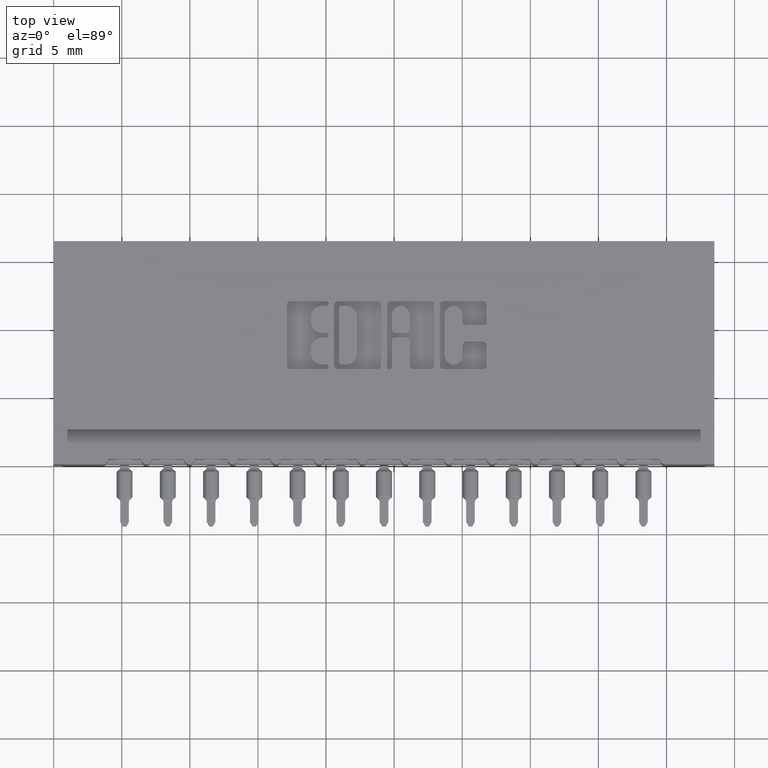
[diagram: clean part render]
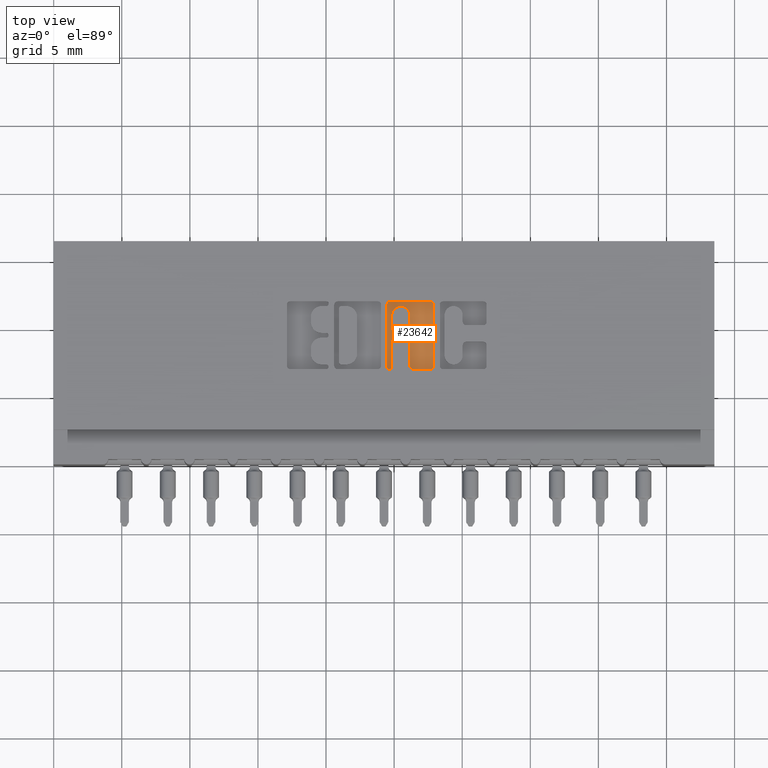
[diagram: same view with one face highlighted and labeled with its STEP entity id]
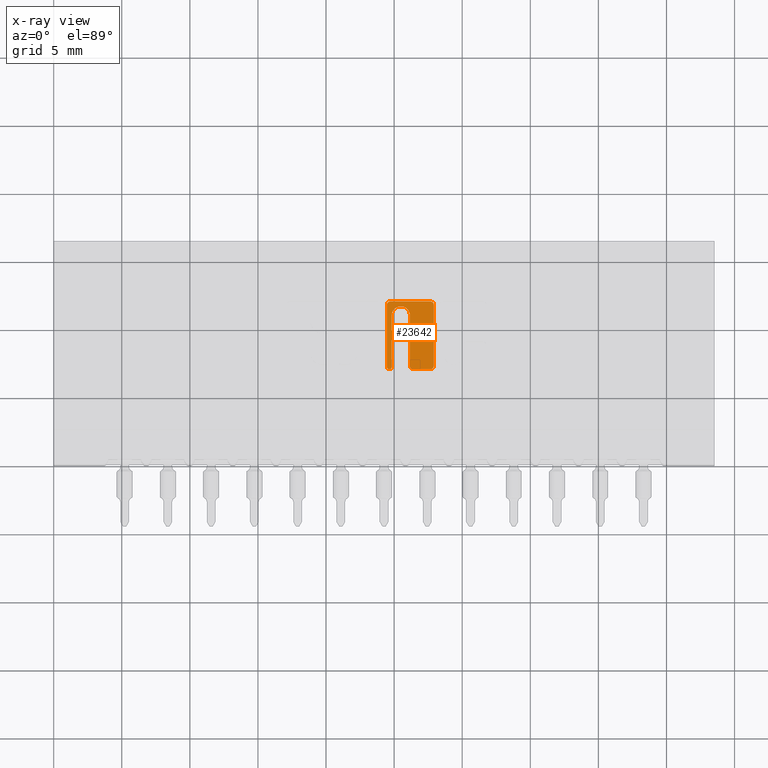
[diagram: x-ray of the same camera — body ghosted, the highlighted face saturated]
A machine part, top view. The second image highlights one B-rep face of the part: STEP entity #23642.
The next image is the same camera in x-ray: the body ghosted, the highlighted face saturated — about 0% of this face is hidden behind the body in this view.
In plain terms, the highlighted planar face has unit normal (0, 0, 1).
Its self-contained STEP definition (entity closure, byte-faithful):
#17 = CARTESIAN_POINT ( 'NONE',  ( -1.290985506876496686E-14, 0.3656290308573138526, -0.01000000000000000021 ) ) ;
#174 = CARTESIAN_POINT ( 'NONE',  ( 1.029844485303984758, 0.3558133606535435201, -0.01000000000000000021 ) ) ;
#223 = AXIS2_PLACEMENT_3D ( 'NONE', #5933, #2314, #20627 ) ;
#443 = DIRECTION ( 'NONE',  ( -0.0000000000000000000, 0.0000000000000000000, 1.000000000000000000 ) ) ;
#669 = CARTESIAN_POINT ( 'NONE',  ( 0.9871463199174501657, 0.3891866393464887830, -0.01000000000000000021 ) ) ;
#715 = CARTESIAN_POINT ( 'NONE',  ( 1.089229290037011522, 0.4608410318342104350, -0.01000000000000000021 ) ) ;
#728 = DIRECTION ( 'NONE',  ( 1.000000000000000000, 0.0000000000000000000, 0.0000000000000000000 ) ) ;
#763 = ORIENTED_EDGE ( 'NONE', *, *, #12446, .F. ) ;
#876 = PLANE ( 'NONE',  #223 ) ;
#997 = DIRECTION ( 'NONE',  ( 1.000000000000000000, 0.0000000000000000000, 0.0000000000000000000 ) ) ;
#1045 = VECTOR ( 'NONE', #23319, 39.37007874015748143 ) ;
#1099 = DIRECTION ( 'NONE',  ( 1.000000000000000000, 0.0000000000000000000, 0.0000000000000000000 ) ) ;
#1282 = CARTESIAN_POINT ( 'NONE',  ( 0.9635887114283309129, 0.0000000000000000000, -0.01000000000000000021 ) ) ;
#1470 = AXIS2_PLACEMENT_3D ( 'NONE', #4168, #443, #11519 ) ;
#1570 = EDGE_LOOP ( 'NONE', ( #9119, #17595, #19619, #4228, #9385, #7135 ) ) ;
#1783 = DIRECTION ( 'NONE',  ( -0.0000000000000000000, 0.0000000000000000000, 1.000000000000000000 ) ) ;
#1811 = LINE ( 'NONE', #17, #10176 ) ;
#1936 = VERTEX_POINT ( 'NONE', #10135 ) ;
#2078 = CARTESIAN_POINT ( 'NONE',  ( 0.9773306497136469151, 0.2812142671046480302, -0.01000000000000000021 ) ) ;
#2191 = EDGE_CURVE ( 'NONE', #21495, #20433, #16770, .T. ) ;
#2295 = DIRECTION ( 'NONE',  ( 1.000000000000000000, 0.0000000000000000000, 0.0000000000000000000 ) ) ;
#2314 = DIRECTION ( 'NONE',  ( -0.0000000000000000000, 0.0000000000000000000, 1.000000000000000000 ) ) ;
#2467 = CIRCLE ( 'NONE', #20167, 0.009815670203803340821 ) ;
#2478 = VERTEX_POINT ( 'NONE', #8548 ) ;
#2541 = LINE ( 'NONE', #15673, #5998 ) ;
#2776 = DIRECTION ( 'NONE',  ( 0.0000000000000000000, 1.000000000000000000, -0.0000000000000000000 ) ) ;
#2873 = DIRECTION ( 'NONE',  ( -0.0000000000000000000, 0.0000000000000000000, 1.000000000000000000 ) ) ;
#2908 = CARTESIAN_POINT ( 'NONE',  ( 0.9635887114283309129, 0.4608410318342101575, -0.01000000000000000021 ) ) ;
#2953 = VERTEX_POINT ( 'NONE', #174 ) ;
#3130 = EDGE_CURVE ( 'NONE', #7037, #8581, #10261, .T. ) ;
#3205 = VERTEX_POINT ( 'NONE', #8217 ) ;
#3386 = ORIENTED_EDGE ( 'NONE', *, *, #15648, .T. ) ;
#3537 = CARTESIAN_POINT ( 'NONE',  ( 1.099044960240806779, 0.2841589681657809008, -0.01000000000000000021 ) ) ;
#3635 = ORIENTED_EDGE ( 'NONE', *, *, #7976, .F. ) ;
#3869 = ORIENTED_EDGE ( 'NONE', *, *, #12209, .F. ) ;
#4025 = AXIS2_PLACEMENT_3D ( 'NONE', #13728, #19012, #728 ) ;
#4088 = CIRCLE ( 'NONE', #7558, 0.009815670203796511215 ) ;
#4168 = CARTESIAN_POINT ( 'NONE',  ( 1.020028815100185726, 0.3891866393464820106, -0.01000000000000000021 ) ) ;
#4189 = CARTESIAN_POINT ( 'NONE',  ( 0.9734043816321273912, 0.4608410318342101575, -0.01000000000000000021 ) ) ;
#4228 = ORIENTED_EDGE ( 'NONE', *, *, #4588, .T. ) ;
#4318 = EDGE_CURVE ( 'NONE', #21502, #21564, #6507, .T. ) ;
#4410 = ORIENTED_EDGE ( 'NONE', *, *, #13115, .F. ) ;
#4416 = DIRECTION ( 'NONE',  ( -1.000000000000000000, 0.0000000000000000000, 0.0000000000000000000 ) ) ;
#4588 = EDGE_CURVE ( 'NONE', #21502, #3205, #22165, .T. ) ;
#4649 = LINE ( 'NONE', #6118, #17536 ) ;
#4866 = ORIENTED_EDGE ( 'NONE', *, *, #20290, .T. ) ;
#5036 = EDGE_CURVE ( 'NONE', #17226, #20433, #21900, .T. ) ;
#5120 = CIRCLE ( 'NONE', #8596, 0.009815670203796920609 ) ;
#5594 = VECTOR ( 'NONE', #18985, 39.37007874015748143 ) ;
#5933 = CARTESIAN_POINT ( 'NONE',  ( 0.0000000000000000000, 0.0000000000000000000, -0.01000000000000000021 ) ) ;
#5998 = VECTOR ( 'NONE', #10130, 39.37007874015748143 ) ;
#6118 = CARTESIAN_POINT ( 'NONE',  ( 0.0000000000000000000, 0.2743432979619847001, -0.01000000000000000021 ) ) ;
#6507 = CIRCLE ( 'NONE', #1470, 0.009815670203796374171 ) ;
#6653 = CIRCLE ( 'NONE', #19336, 0.009815670203795690690 ) ;
#6673 = EDGE_CURVE ( 'NONE', #1936, #7627, #9474, .T. ) ;
#6736 = CARTESIAN_POINT ( 'NONE',  ( 0.9704596805709869711, 0.2812142671046480302, -0.01000000000000000021 ) ) ;
#7026 = CARTESIAN_POINT ( 'NONE',  ( 0.9635887114283309129, 0.2812142671046480302, -0.01000000000000000021 ) ) ;
#7037 = VERTEX_POINT ( 'NONE', #20591 ) ;
#7135 = ORIENTED_EDGE ( 'NONE', *, *, #5036, .T. ) ;
#7152 = CARTESIAN_POINT ( 'NONE',  ( 1.020028815100188169, 0.3656290308573498238, -0.01000000000000000021 ) ) ;
#7331 = CARTESIAN_POINT ( 'NONE',  ( 0.9773306497136469151, 0.0000000000000000000, -0.01000000000000000021 ) ) ;
#7344 = EDGE_CURVE ( 'NONE', #21495, #21564, #14310, .T. ) ;
#7512 = DIRECTION ( 'NONE',  ( -0.0000000000000000000, 0.0000000000000000000, 1.000000000000000000 ) ) ;
#7558 = AXIS2_PLACEMENT_3D ( 'NONE', #4189, #1783, #16479 ) ;
#7627 = VERTEX_POINT ( 'NONE', #13701 ) ;
#7633 = DIRECTION ( 'NONE',  ( 1.000000000000000000, 0.0000000000000000000, 0.0000000000000000000 ) ) ;
#7687 = AXIS2_PLACEMENT_3D ( 'NONE', #6736, #2873, #1099 ) ;
#7976 = EDGE_CURVE ( 'NONE', #2478, #2953, #20962, .T. ) ;
#8002 = DIRECTION ( 'NONE',  ( 1.000000000000000000, 0.0000000000000000000, 0.0000000000000000000 ) ) ;
#8217 = CARTESIAN_POINT ( 'NONE',  ( 0.9871463199174501657, 0.3793709691426854214, -0.01000000000000000021 ) ) ;
#8464 = CARTESIAN_POINT ( 'NONE',  ( 0.9773306497136469151, 0.3891866393464887830, -0.01000000000000000021 ) ) ;
#8492 = ORIENTED_EDGE ( 'NONE', *, *, #6673, .F. ) ;
#8548 = CARTESIAN_POINT ( 'NONE',  ( 1.029844485303984758, 0.2841589681657878952, -0.01000000000000000021 ) ) ;
#8581 = VERTEX_POINT ( 'NONE', #13705 ) ;
#8596 = AXIS2_PLACEMENT_3D ( 'NONE', #11963, #11723, #10038 ) ;
#8635 = DIRECTION ( 'NONE',  ( 0.0000000000000000000, 1.000000000000000000, -0.0000000000000000000 ) ) ;
#8756 = LINE ( 'NONE', #1282, #17148 ) ;
#8837 = VECTOR ( 'NONE', #13041, 39.37007874015748143 ) ;
#8896 = ORIENTED_EDGE ( 'NONE', *, *, #15778, .T. ) ;
#9119 = ORIENTED_EDGE ( 'NONE', *, *, #2191, .F. ) ;
#9385 = ORIENTED_EDGE ( 'NONE', *, *, #22101, .F. ) ;
#9441 = CARTESIAN_POINT ( 'NONE',  ( 0.9871463199174501657, 0.3558133606535456295, -0.01000000000000000021 ) ) ;
#9474 = CIRCLE ( 'NONE', #18685, 0.009815670203803203778 ) ;
#9503 = CARTESIAN_POINT ( 'NONE',  ( 1.029844485303982093, 0.3891866393464820106, -0.01000000000000000021 ) ) ;
#9905 = EDGE_CURVE ( 'NONE', #2953, #23581, #5120, .T. ) ;
#9965 = AXIS2_PLACEMENT_3D ( 'NONE', #17328, #13394, #2295 ) ;
#10038 = DIRECTION ( 'NONE',  ( 1.000000000000000000, 0.0000000000000000000, 0.0000000000000000000 ) ) ;
#10130 = DIRECTION ( 'NONE',  ( 0.0000000000000000000, -1.000000000000000000, 0.0000000000000000000 ) ) ;
#10135 = CARTESIAN_POINT ( 'NONE',  ( 0.9871463199174501657, 0.3656290308573487136, -0.01000000000000000021 ) ) ;
#10176 = VECTOR ( 'NONE', #14703, 39.37007874015748143 ) ;
#10261 = LINE ( 'NONE', #17475, #19639 ) ;
#10363 = CIRCLE ( 'NONE', #7687, 0.006870969142657995000 ) ;
#10423 = VERTEX_POINT ( 'NONE', #15783 ) ;
#11073 = CARTESIAN_POINT ( 'NONE',  ( 0.9773306497136469151, 0.0000000000000000000, -0.01000000000000000021 ) ) ;
#11213 = CARTESIAN_POINT ( 'NONE',  ( -1.575889869590913575E-15, 0.3793709691426813135, -0.01000000000000000021 ) ) ;
#11519 = DIRECTION ( 'NONE',  ( 1.000000000000000000, 0.0000000000000000000, 0.0000000000000000000 ) ) ;
#11723 = DIRECTION ( 'NONE',  ( -0.0000000000000000000, 0.0000000000000000000, 1.000000000000000000 ) ) ;
#11782 = CARTESIAN_POINT ( 'NONE',  ( 1.089229290037010411, 0.2743432979619847001, -0.01000000000000000021 ) ) ;
#11826 = EDGE_CURVE ( 'NONE', #23581, #1936, #1811, .T. ) ;
#11963 = CARTESIAN_POINT ( 'NONE',  ( 1.020028815100187725, 0.3558133606535528459, -0.01000000000000000021 ) ) ;
#12183 = CARTESIAN_POINT ( 'NONE',  ( 1.003587567508811729, 0.4301670498449322588, -0.01000000000000000021 ) ) ;
#12209 = EDGE_CURVE ( 'NONE', #7627, #23621, #13696, .T. ) ;
#12292 = EDGE_LOOP ( 'NONE', ( #21360, #16717, #763, #8896, #3869, #8492, #20511, #19217, #3635, #17801, #4410, #3386, #23455, #4866 ) ) ;
#12446 = EDGE_CURVE ( 'NONE', #16787, #16462, #8756, .T. ) ;
#12622 = EDGE_CURVE ( 'NONE', #13624, #15166, #2541, .T. ) ;
#12664 = CIRCLE ( 'NONE', #9965, 0.009815670203796237128 ) ;
#13041 = DIRECTION ( 'NONE',  ( -1.000000000000000000, -4.153954829891640784E-15, 0.0000000000000000000 ) ) ;
#13069 = VECTOR ( 'NONE', #18644, 39.37007874015748143 ) ;
#13085 = EDGE_CURVE ( 'NONE', #7037, #16462, #4088, .T. ) ;
#13115 = EDGE_CURVE ( 'NONE', #20193, #10423, #4649, .T. ) ;
#13240 = DIRECTION ( 'NONE',  ( -0.0000000000000000000, 0.0000000000000000000, 1.000000000000000000 ) ) ;
#13394 = DIRECTION ( 'NONE',  ( -0.0000000000000000000, 0.0000000000000000000, 1.000000000000000000 ) ) ;
#13624 = VERTEX_POINT ( 'NONE', #16056 ) ;
#13651 = DIRECTION ( 'NONE',  ( 1.000000000000000000, 0.0000000000000000000, 0.0000000000000000000 ) ) ;
#13696 = LINE ( 'NONE', #7331, #5594 ) ;
#13701 = CARTESIAN_POINT ( 'NONE',  ( 0.9773306497136469151, 0.3558133606535456295, -0.01000000000000000021 ) ) ;
#13705 = CARTESIAN_POINT ( 'NONE',  ( 1.089229290037013964, 0.4706567020380066912, -0.01000000000000000021 ) ) ;
#13728 = CARTESIAN_POINT ( 'NONE',  ( 1.039660155507788009, 0.2841589681657878952, -0.01000000000000000021 ) ) ;
#14087 = AXIS2_PLACEMENT_3D ( 'NONE', #12183, #16150, #997 ) ;
#14310 = LINE ( 'NONE', #15996, #1045 ) ;
#14703 = DIRECTION ( 'NONE',  ( -1.000000000000000000, -3.530861605407645268E-14, 0.0000000000000000000 ) ) ;
#14977 = FACE_BOUND ( 'NONE', #1570, .T. ) ;
#15166 = VERTEX_POINT ( 'NONE', #3537 ) ;
#15283 = DIRECTION ( 'NONE',  ( 1.000000000000000000, 0.0000000000000000000, 0.0000000000000000000 ) ) ;
#15648 = EDGE_CURVE ( 'NONE', #20193, #15166, #12664, .T. ) ;
#15673 = CARTESIAN_POINT ( 'NONE',  ( 1.099044960240806779, 0.0000000000000000000, -0.01000000000000000021 ) ) ;
#15778 = EDGE_CURVE ( 'NONE', #16787, #23621, #10363, .T. ) ;
#15783 = CARTESIAN_POINT ( 'NONE',  ( 1.039660155507785566, 0.2743432979619847001, -0.01000000000000000021 ) ) ;
#15996 = CARTESIAN_POINT ( 'NONE',  ( 1.029844485303982093, 0.0000000000000000000, -0.01000000000000000021 ) ) ;
#16056 = CARTESIAN_POINT ( 'NONE',  ( 1.099044960240806779, 0.4608410318342010537, -0.01000000000000000021 ) ) ;
#16150 = DIRECTION ( 'NONE',  ( -0.0000000000000000000, 0.0000000000000000000, 1.000000000000000000 ) ) ;
#16462 = VERTEX_POINT ( 'NONE', #2908 ) ;
#16479 = DIRECTION ( 'NONE',  ( 1.000000000000000000, 0.0000000000000000000, 0.0000000000000000000 ) ) ;
#16717 = ORIENTED_EDGE ( 'NONE', *, *, #13085, .T. ) ;
#16770 = CIRCLE ( 'NONE', #14087, 0.02625691779516779734 ) ;
#16787 = VERTEX_POINT ( 'NONE', #7026 ) ;
#16820 = VECTOR ( 'NONE', #2776, 39.37007874015748143 ) ;
#17148 = VECTOR ( 'NONE', #8635, 39.37007874015748143 ) ;
#17226 = VERTEX_POINT ( 'NONE', #8464 ) ;
#17328 = CARTESIAN_POINT ( 'NONE',  ( 1.089229290037010411, 0.2841589681657809008, -0.01000000000000000021 ) ) ;
#17475 = CARTESIAN_POINT ( 'NONE',  ( 0.0000000000000000000, 0.4706567020380066912, -0.01000000000000000021 ) ) ;
#17536 = VECTOR ( 'NONE', #4416, 39.37007874015748143 ) ;
#17595 = ORIENTED_EDGE ( 'NONE', *, *, #7344, .T. ) ;
#17767 = CARTESIAN_POINT ( 'NONE',  ( 0.9773306497136469151, 0.4301670624473479809, -0.01000000000000000021 ) ) ;
#17776 = CARTESIAN_POINT ( 'NONE',  ( 1.029844485303982093, 0.4301670498449322588, -0.01000000000000000021 ) ) ;
#17801 = ORIENTED_EDGE ( 'NONE', *, *, #22559, .T. ) ;
#18245 = CIRCLE ( 'NONE', #4025, 0.009815670203803340821 ) ;
#18644 = DIRECTION ( 'NONE',  ( 0.0000000000000000000, 1.000000000000000000, -0.0000000000000000000 ) ) ;
#18685 = AXIS2_PLACEMENT_3D ( 'NONE', #9441, #7512, #7633 ) ;
#18985 = DIRECTION ( 'NONE',  ( 0.0000000000000000000, -1.000000000000000000, 0.0000000000000000000 ) ) ;
#19012 = DIRECTION ( 'NONE',  ( -0.0000000000000000000, 0.0000000000000000000, 1.000000000000000000 ) ) ;
#19217 = ORIENTED_EDGE ( 'NONE', *, *, #9905, .F. ) ;
#19336 = AXIS2_PLACEMENT_3D ( 'NONE', #715, #13240, #15283 ) ;
#19516 = CARTESIAN_POINT ( 'NONE',  ( 1.029844485303984758, 0.0000000000000000000, -0.01000000000000000021 ) ) ;
#19619 = ORIENTED_EDGE ( 'NONE', *, *, #4318, .F. ) ;
#19639 = VECTOR ( 'NONE', #13651, 39.37007874015748143 ) ;
#20167 = AXIS2_PLACEMENT_3D ( 'NONE', #669, #22676, #8002 ) ;
#20193 = VERTEX_POINT ( 'NONE', #11782 ) ;
#20290 = EDGE_CURVE ( 'NONE', #13624, #8581, #6653, .T. ) ;
#20433 = VERTEX_POINT ( 'NONE', #17767 ) ;
#20511 = ORIENTED_EDGE ( 'NONE', *, *, #11826, .F. ) ;
#20591 = CARTESIAN_POINT ( 'NONE',  ( 0.9734043816321273912, 0.4706567020380066912, -0.01000000000000000021 ) ) ;
#20627 = DIRECTION ( 'NONE',  ( 1.000000000000000000, 0.0000000000000000000, 0.0000000000000000000 ) ) ;
#20962 = LINE ( 'NONE', #19516, #16820 ) ;
#21360 = ORIENTED_EDGE ( 'NONE', *, *, #3130, .F. ) ;
#21495 = VERTEX_POINT ( 'NONE', #17776 ) ;
#21502 = VERTEX_POINT ( 'NONE', #23431 ) ;
#21564 = VERTEX_POINT ( 'NONE', #9503 ) ;
#21900 = LINE ( 'NONE', #11073, #13069 ) ;
#22101 = EDGE_CURVE ( 'NONE', #17226, #3205, #2467, .T. ) ;
#22165 = LINE ( 'NONE', #11213, #8837 ) ;
#22559 = EDGE_CURVE ( 'NONE', #2478, #10423, #18245, .T. ) ;
#22676 = DIRECTION ( 'NONE',  ( -0.0000000000000000000, 0.0000000000000000000, 1.000000000000000000 ) ) ;
#23319 = DIRECTION ( 'NONE',  ( 0.0000000000000000000, -1.000000000000000000, 0.0000000000000000000 ) ) ;
#23431 = CARTESIAN_POINT ( 'NONE',  ( 1.020028815100185726, 0.3793709691426855879, -0.01000000000000000021 ) ) ;
#23455 = ORIENTED_EDGE ( 'NONE', *, *, #12622, .F. ) ;
#23581 = VERTEX_POINT ( 'NONE', #7152 ) ;
#23618 = FACE_OUTER_BOUND ( 'NONE', #12292, .T. ) ;
#23621 = VERTEX_POINT ( 'NONE', #2078 ) ;
#23642 = ADVANCED_FACE ( 'NONE', ( #14977, #23618 ), #876, .T. ) ;